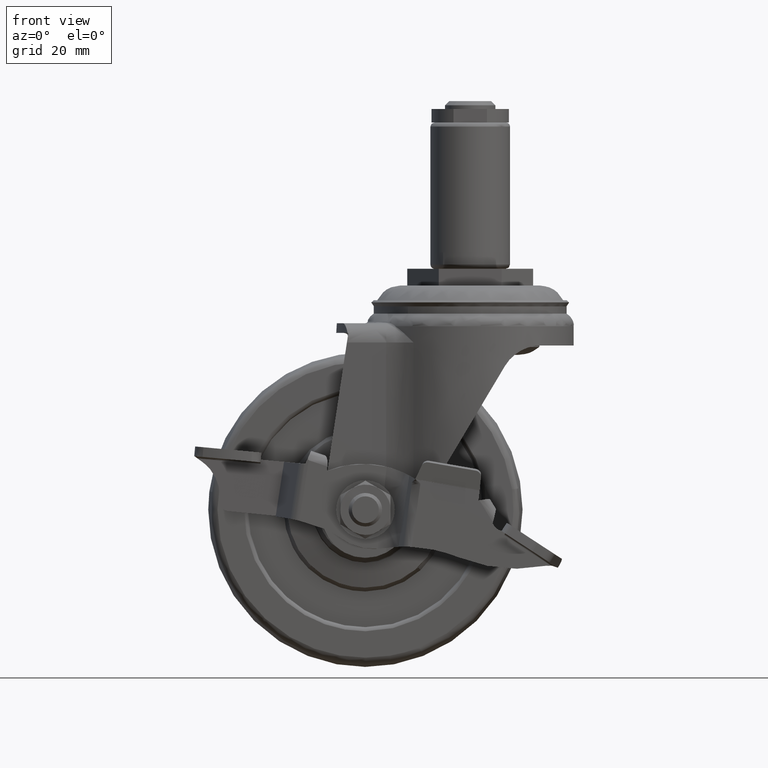
[diagram: clean part render]
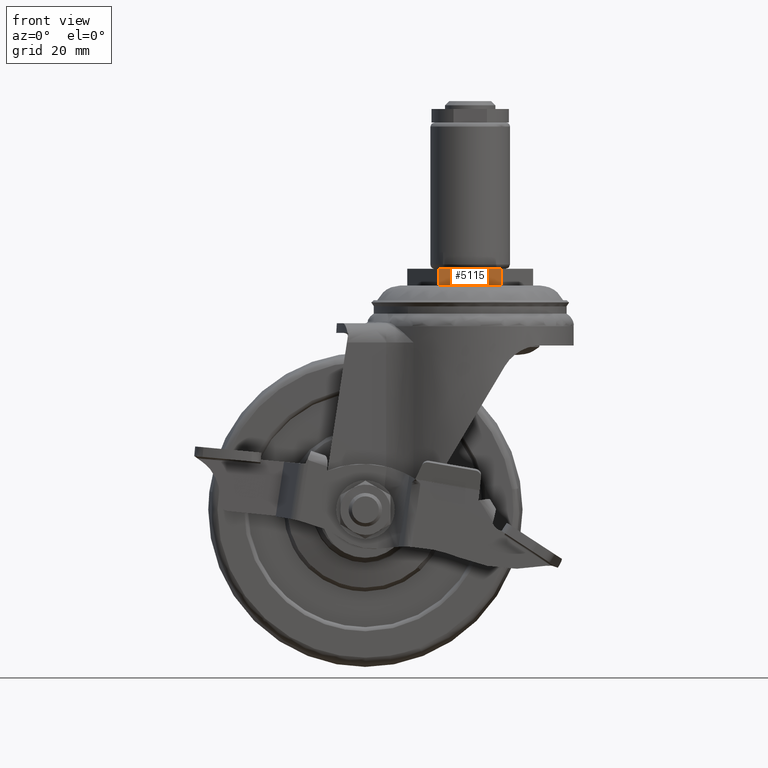
[diagram: same view with one face highlighted and labeled with its STEP entity id]
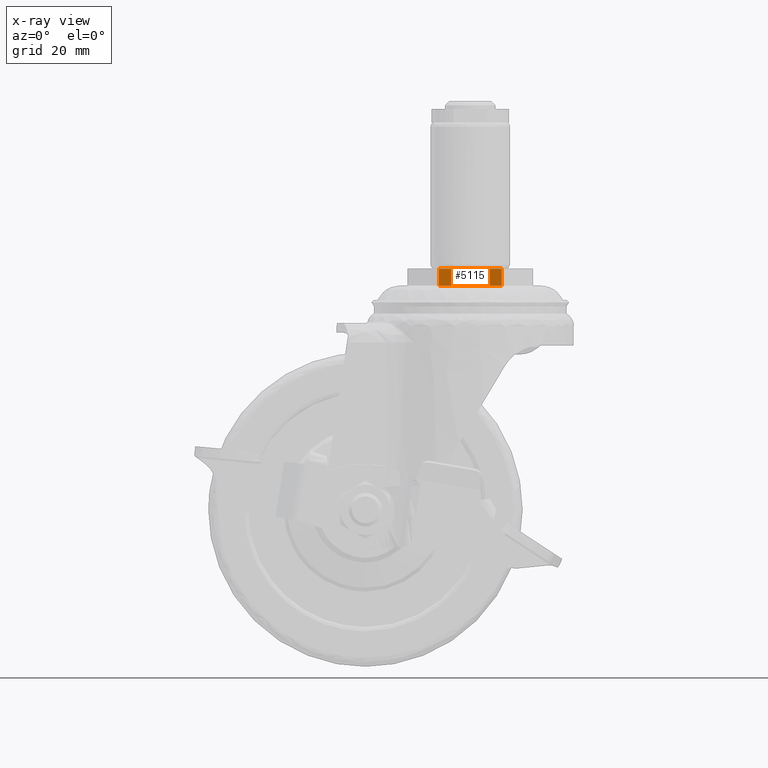
[diagram: x-ray of the same camera — body ghosted, the highlighted face saturated]
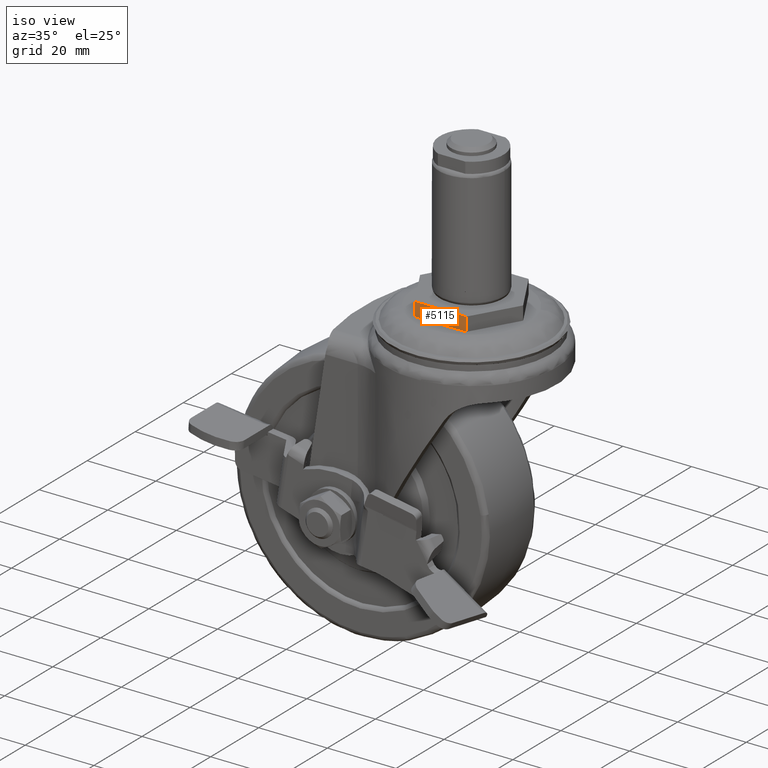
[diagram: same view with one face highlighted and labeled with its STEP entity id]
A machine part, front view. The second image highlights one B-rep face of the part: STEP entity #5115.
The next image is the same camera in x-ray: the body ghosted, the highlighted face saturated — about 0% of this face is hidden behind the body in this view.
A second angle (iso view) of the same face is appended — the face is thin or edge-on in the first view.
In plain terms, the highlighted face is a freeform B-spline surface patch.
Its self-contained STEP definition (entity closure, byte-faithful):
#5036=CARTESIAN_POINT('',(7.505479000000000,-13.0,-4.0));
#5037=VERTEX_POINT('',#5036);
#5043=CARTESIAN_POINT('',(-7.505628000000001,-13.0,-4.0));
#5044=VERTEX_POINT('',#5043);
#5045=CARTESIAN_POINT('',(7.505479000000000,-13.0,-4.0));
#5046=CARTESIAN_POINT('',(-7.505628000000001,-13.0,-4.0));
#5047=QUASI_UNIFORM_CURVE('',1,(#5045,#5046),.UNSPECIFIED.,.F.,.U.);
#5048=EDGE_CURVE('',#5037,#5044,#5047,.T.);
#5071=CARTESIAN_POINT('',(-7.505628000000001,-13.0,0.0));
#5072=VERTEX_POINT('',#5071);
#5086=CARTESIAN_POINT('',(-7.505628000000001,-13.0,-4.0));
#5087=CARTESIAN_POINT('',(-7.505628000000001,-13.0,0.0));
#5088=QUASI_UNIFORM_CURVE('',1,(#5086,#5087),.UNSPECIFIED.,.F.,.U.);
#5089=EDGE_CURVE('',#5044,#5072,#5088,.T.);
#5094=CARTESIAN_POINT('',(-8.255432906469096,-13.0,-4.199799992247224));
#5095=CARTESIAN_POINT('',(-8.255432906469096,-13.0,0.199800099535584));
#5096=CARTESIAN_POINT('',(8.255284174888608,-13.0,-4.199799992247224));
#5097=CARTESIAN_POINT('',(8.255284174888608,-13.0,0.199800099535584));
#5098=B_SPLINE_SURFACE_WITH_KNOTS('',1,1,((#5094,#5096),(#5095,#5097)),.UNSPECIFIED.,.F.,.F.,.U.,(2,2),(2,2),(0.0,4.399600091782808),(0.0,16.510717081357701),.UNSPECIFIED.);
#5099=CARTESIAN_POINT('',(7.505479000000000,-13.0,0.0));
#5100=VERTEX_POINT('',#5099);
#5101=CARTESIAN_POINT('',(7.505479000000000,-13.0,0.0));
#5102=CARTESIAN_POINT('',(-7.505628000000001,-13.0,0.0));
#5103=QUASI_UNIFORM_CURVE('',1,(#5101,#5102),.UNSPECIFIED.,.F.,.U.);
#5104=EDGE_CURVE('',#5100,#5072,#5103,.T.);
#5105=ORIENTED_EDGE('',*,*,#5104,.T.);
#5106=ORIENTED_EDGE('',*,*,#5089,.F.);
#5107=ORIENTED_EDGE('',*,*,#5048,.F.);
#5108=CARTESIAN_POINT('',(7.505479000000000,-13.0,-4.0));
#5109=CARTESIAN_POINT('',(7.505479000000000,-13.0,0.0));
#5110=QUASI_UNIFORM_CURVE('',1,(#5108,#5109),.UNSPECIFIED.,.F.,.U.);
#5111=EDGE_CURVE('',#5037,#5100,#5110,.T.);
#5112=ORIENTED_EDGE('',*,*,#5111,.T.);
#5113=EDGE_LOOP('',(#5105,#5106,#5107,#5112));
#5114=FACE_OUTER_BOUND('',#5113,.T.);
#5115=ADVANCED_FACE('',(#5114),#5098,.F.);